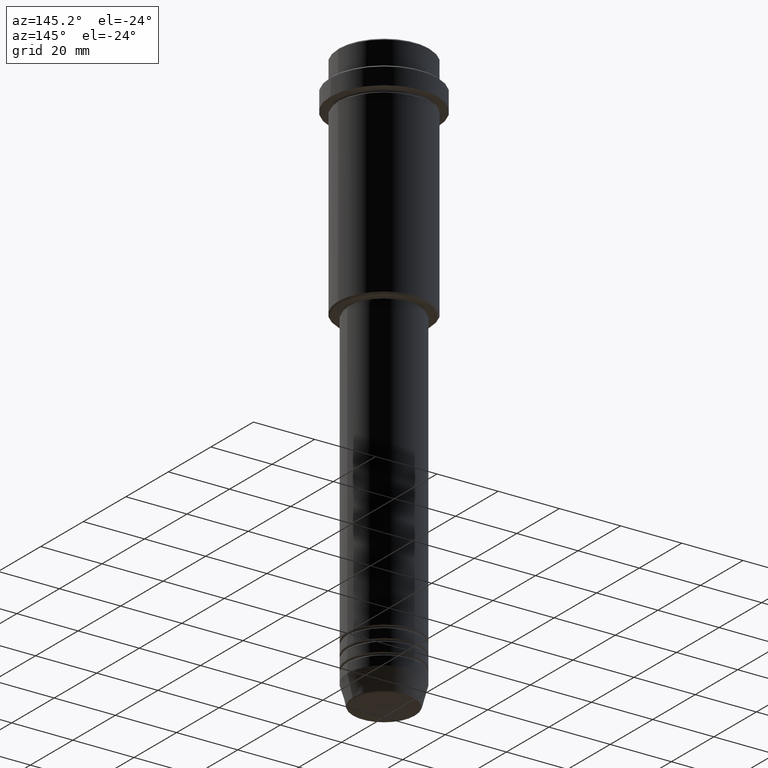
[diagram: clean part render]
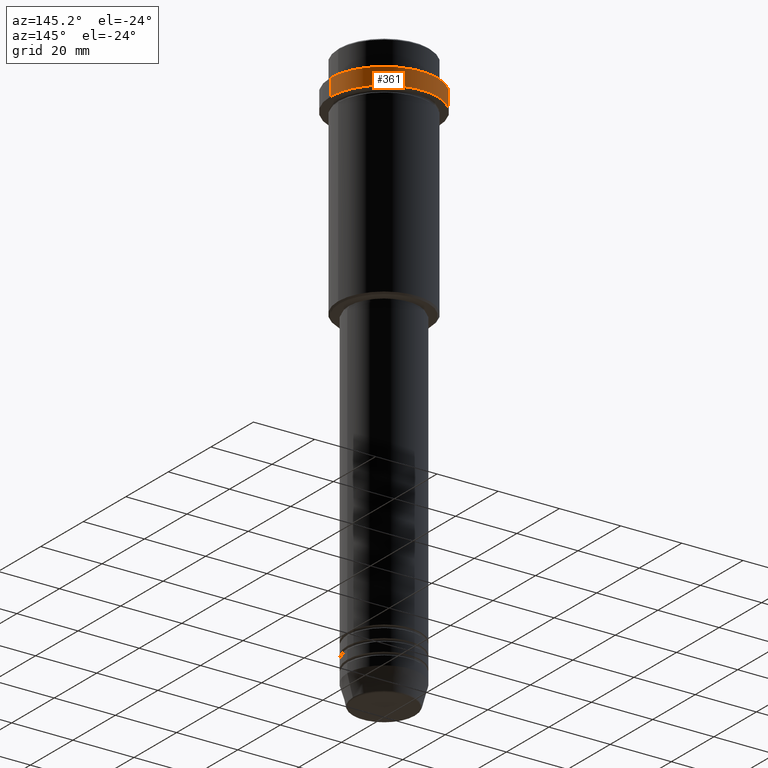
[diagram: same view with one face highlighted and labeled with its STEP entity id]
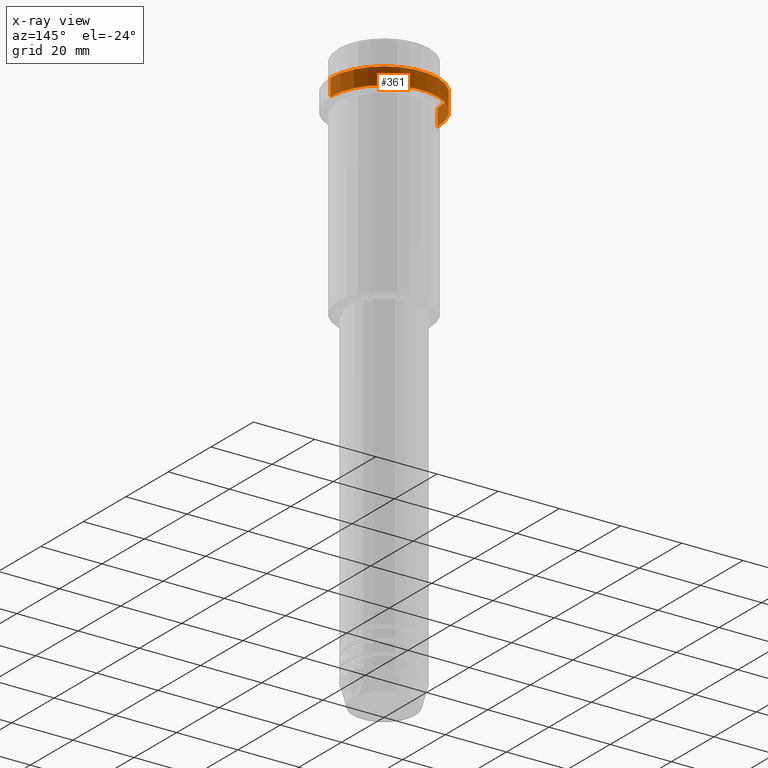
[diagram: x-ray of the same camera — body ghosted, the highlighted face saturated]
A machine part, auxiliary view. The second image highlights one B-rep face of the part: STEP entity #361.
The next image is the same camera in x-ray: the body ghosted, the highlighted face saturated — about 0% of this face is hidden behind the body in this view.
In plain terms, the highlighted cylindrical surface (partial cylindrical patch) has radius 17.5 mm, axis along (-0, -0, 1).
Its self-contained STEP definition (entity closure, byte-faithful):
#26 = AXIS2_PLACEMENT_3D ( 'NONE', #1172, #1263, #1271 ) ;
#48 = DIRECTION ( 'NONE',  ( -0.000000000000000000, -0.000000000000000000, 1.000000000000000000 ) ) ;
#67 = CIRCLE ( 'NONE', #876, 17.50000000000000000 ) ;
#80 = EDGE_CURVE ( 'NONE', #729, #393, #159, .T. ) ;
#102 = EDGE_CURVE ( 'NONE', #294, #393, #116, .T. ) ;
#108 = DIRECTION ( 'NONE',  ( -0.000000000000000000, -0.000000000000000000, 1.000000000000000000 ) ) ;
#116 = CIRCLE ( 'NONE', #26, 17.50000000000000000 ) ;
#159 = LINE ( 'NONE', #693, #782 ) ;
#283 = CARTESIAN_POINT ( 'NONE',  ( -17.50000000000000000, 2.143131898507868248E-15, -15.00000000000000178 ) ) ;
#294 = VERTEX_POINT ( 'NONE', #1292 ) ;
#324 = DIRECTION ( 'NONE',  ( 1.000000000000000000, 0.000000000000000000, 0.000000000000000000 ) ) ;
#361 = ADVANCED_FACE ( 'NONE', ( #533 ), #1404, .T. ) ;
#393 = VERTEX_POINT ( 'NONE', #1241 ) ;
#404 = ORIENTED_EDGE ( 'NONE', *, *, #102, .T. ) ;
#429 = CARTESIAN_POINT ( 'NONE',  ( 0.000000000000000000, 0.000000000000000000, 0.000000000000000000 ) ) ;
#443 = ORIENTED_EDGE ( 'NONE', *, *, #702, .T. ) ;
#533 = FACE_OUTER_BOUND ( 'NONE', #929, .T. ) ;
#555 = AXIS2_PLACEMENT_3D ( 'NONE', #429, #108, #1298 ) ;
#574 = EDGE_CURVE ( 'NONE', #729, #1102, #67, .T. ) ;
#677 = CARTESIAN_POINT ( 'NONE',  ( -17.50000000000000000, 2.143131898507868248E-15, 0.000000000000000000 ) ) ;
#693 = CARTESIAN_POINT ( 'NONE',  ( 17.50000000000000000, 0.000000000000000000, 0.000000000000000000 ) ) ;
#702 = EDGE_CURVE ( 'NONE', #1102, #294, #1324, .T. ) ;
#729 = VERTEX_POINT ( 'NONE', #1319 ) ;
#734 = ORIENTED_EDGE ( 'NONE', *, *, #80, .F. ) ;
#782 = VECTOR ( 'NONE', #1123, 1000.000000000000000 ) ;
#868 = CARTESIAN_POINT ( 'NONE',  ( 0.000000000000000000, 0.000000000000000000, -15.00000000000000178 ) ) ;
#876 = AXIS2_PLACEMENT_3D ( 'NONE', #868, #48, #324 ) ;
#929 = EDGE_LOOP ( 'NONE', ( #976, #443, #404, #734 ) ) ;
#976 = ORIENTED_EDGE ( 'NONE', *, *, #574, .T. ) ;
#1102 = VERTEX_POINT ( 'NONE', #283 ) ;
#1123 = DIRECTION ( 'NONE',  ( -0.000000000000000000, -0.000000000000000000, 1.000000000000000000 ) ) ;
#1172 = CARTESIAN_POINT ( 'NONE',  ( 0.000000000000000000, 0.000000000000000000, -9.500000000000001776 ) ) ;
#1225 = DIRECTION ( 'NONE',  ( -0.000000000000000000, -0.000000000000000000, 1.000000000000000000 ) ) ;
#1241 = CARTESIAN_POINT ( 'NONE',  ( 17.50000000000000000, 0.000000000000000000, -9.500000000000001776 ) ) ;
#1263 = DIRECTION ( 'NONE',  ( 0.000000000000000000, 0.000000000000000000, -1.000000000000000000 ) ) ;
#1264 = VECTOR ( 'NONE', #1225, 1000.000000000000000 ) ;
#1271 = DIRECTION ( 'NONE',  ( 1.000000000000000000, 0.000000000000000000, 0.000000000000000000 ) ) ;
#1292 = CARTESIAN_POINT ( 'NONE',  ( -17.50000000000000000, 2.143131898507868248E-15, -9.500000000000001776 ) ) ;
#1298 = DIRECTION ( 'NONE',  ( 1.000000000000000000, 0.000000000000000000, 0.000000000000000000 ) ) ;
#1319 = CARTESIAN_POINT ( 'NONE',  ( 17.50000000000000000, 0.000000000000000000, -15.00000000000000178 ) ) ;
#1324 = LINE ( 'NONE', #677, #1264 ) ;
#1404 = CYLINDRICAL_SURFACE ( 'NONE', #555, 17.50000000000000000 ) ;